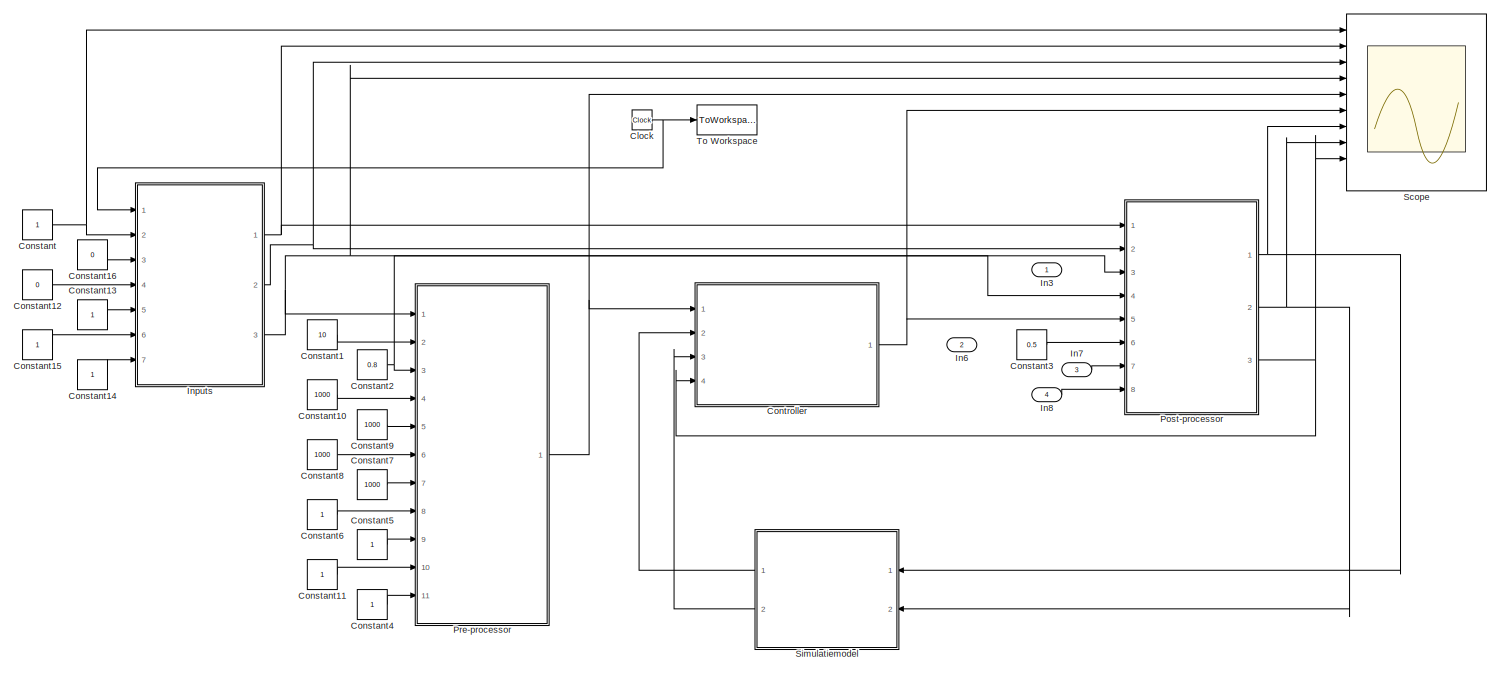
[diagram: root canvas - part 1/2, most of the canvas]
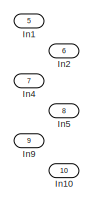
[diagram: root canvas - part 2/2, middle left region]
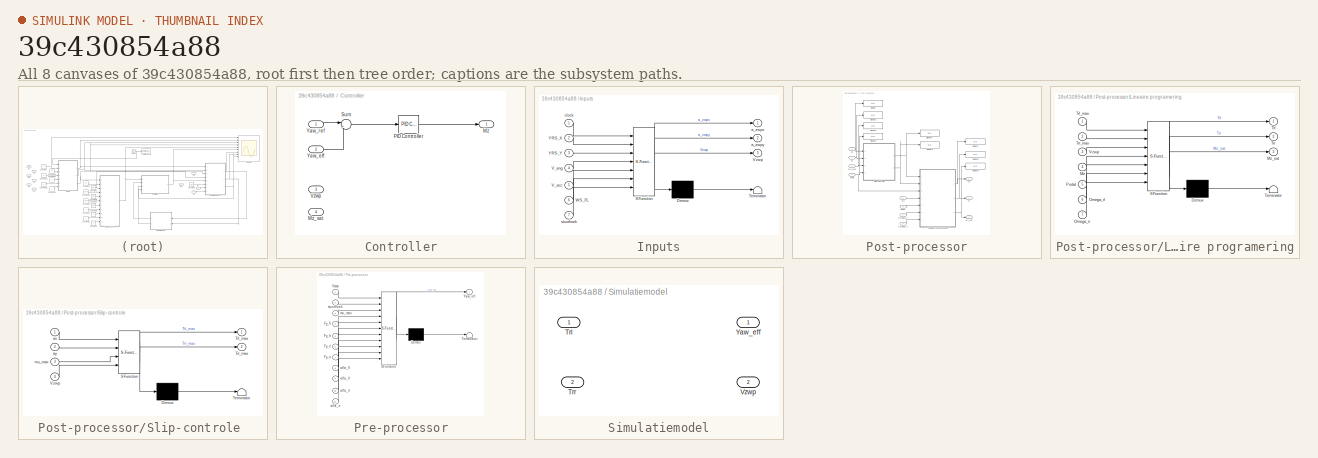
[diagram: thumbnail index - all 8 canvases of the model, root first then tree order]
MODEL slx_39c430854a88
KIND model
CONFIG AbsTol = auto
CONFIG FixedStep = 0.001
CONFIG MaxStep = auto
CONFIG MinStep = auto
CONFIG RelTol = 1e-3
CONFIG SampleTimeConstraint = Unconstrained
CONFIG Solver = ode4
CONFIG SolverMode = Auto
CONFIG SolverName = ode4
CONFIG StartTime = 0.0
CONFIG StopTime = 2
BLOCK [Clock] Clock
BLOCK [Constant] Constant
BLOCK [Constant] Constant1
  Value = 10
BLOCK [Constant] Constant10
  Value = 1000
BLOCK [Constant] Constant11
BLOCK [Constant] Constant12
  Value = 0
BLOCK [Constant] Constant13
BLOCK [Constant] Constant14
BLOCK [Constant] Constant15
BLOCK [Constant] Constant16
  Value = 0
BLOCK [Constant] Constant2
  Value = 0.8
BLOCK [Constant] Constant3
  Value = 0.5
BLOCK [Constant] Constant4
BLOCK [Constant] Constant5
BLOCK [Constant] Constant6
BLOCK [Constant] Constant7
  Value = 1000
BLOCK [Constant] Constant8
  Value = 1000
BLOCK [Constant] Constant9
  Value = 1000
BLOCK [SubSystem] Controller
  Ports = [4, 1]
  RequestExecContextInheritance = off
  Variant = off
BLOCK [Outport] Controller/Mz
  IconDisplay = Port number
BLOCK [Inport] Controller/Mz_sat
  IconDisplay = Port number
  Port = 4
BLOCK [Reference] Controller/PID Controller  REF=simulink/Continuous/PID Controller
  Ports = [1, 1]
  SourceBlock = simulink/Continuous/PID Controller
  SourceType = PID 1dof
BLOCK [Sum] Controller/Sum
  IconShape = round
  InputSameDT = off
  Inputs = |+-
  OutDataTypeStr = Inherit: Inherit via internal rule
  Ports = [2, 1]
  SaturateOnIntegerOverflow = off
BLOCK [Inport] Controller/Vzwp
  IconDisplay = Port number
  Port = 3
BLOCK [Inport] Controller/Yaw_eff
  IconDisplay = Port number
  Port = 2
BLOCK [Inport] Controller/Yaw_ref
  IconDisplay = Port number
BLOCK [Inport] In1
  IconDisplay = Port number
  Port = 5
BLOCK [Inport] In10
  IconDisplay = Port number
  Port = 10
BLOCK [Inport] In2
  IconDisplay = Port number
  Port = 6
BLOCK [Inport] In3
  IconDisplay = Port number
BLOCK [Inport] In4
  IconDisplay = Port number
  Port = 7
BLOCK [Inport] In5
  IconDisplay = Port number
  Port = 8
BLOCK [Inport] In6
  IconDisplay = Port number
  Port = 2
BLOCK [Inport] In7
  IconDisplay = Port number
  Port = 3
BLOCK [Inport] In8
  IconDisplay = Port number
  Port = 4
BLOCK [Inport] In9
  IconDisplay = Port number
  Port = 9
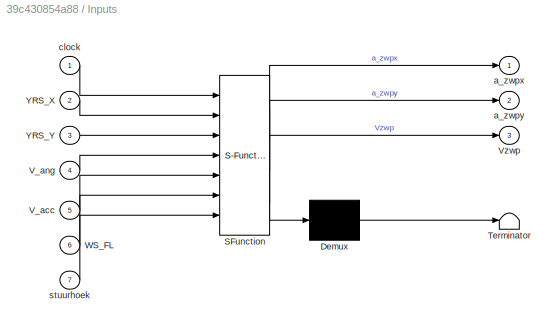
BLOCK [SubSystem] Inputs
  ErrorFcn = Stateflow.Translate.translate
  PermitHierarchicalResolution = ExplicitOnly
  Ports = [7, 3]
  RequestExecContextInheritance = off
  SFBlockType = MATLAB Function
  TreatAsAtomicUnit = on
  Variant = off
BLOCK [Demux] Inputs/ Demux 
  Outputs = 1
  Ports = [1, 1]
BLOCK [S-Function] Inputs/ SFunction 
  EnableBusSupport = on
  FunctionName = sf_sfun
  PortCounts = [7 4]
  Ports = [7, 4]
  SFunctionDeploymentMode = off
  Tag = Stateflow S-Function Controller_Michiel 4
BLOCK [Terminator] Inputs/ Terminator 
BLOCK [Inport] Inputs/V_acc
  IconDisplay = Port number
  Port = 5
BLOCK [Inport] Inputs/V_ang
  IconDisplay = Port number
  Port = 4
BLOCK [Outport] Inputs/Vzwp
  IconDisplay = Port number
  Port = 3
BLOCK [Inport] Inputs/WS_FL
  IconDisplay = Port number
  Port = 6
BLOCK [Inport] Inputs/YRS_X
  IconDisplay = Port number
  Port = 2
BLOCK [Inport] Inputs/YRS_Y
  IconDisplay = Port number
  Port = 3
BLOCK [Outport] Inputs/a_zwpx
  IconDisplay = Port number
BLOCK [Outport] Inputs/a_zwpy
  IconDisplay = Port number
  Port = 2
BLOCK [Inport] Inputs/clock
  IconDisplay = Port number
BLOCK [Inport] Inputs/stuurhoek
  IconDisplay = Port number
  Port = 7
BLOCK [SubSystem] Post-processor
  Ports = [8, 3]
  RequestExecContextInheritance = off
  Variant = off
BLOCK [Display] Post-processor/Display
  Decimation = 1
  Ports = [1]
BLOCK [Display] Post-processor/Display1
  Decimation = 1
  Ports = [1]
BLOCK [Display] Post-processor/Display2
  Decimation = 1
  Ports = [1]
BLOCK [Display] Post-processor/Display3
  Decimation = 1
  Ports = [1]
BLOCK [Display] Post-processor/Display4
  Decimation = 1
  Ports = [1]
BLOCK [Display] Post-processor/Display5
  Decimation = 1
  Ports = [1]
BLOCK [Display] Post-processor/Display6
  Decimation = 1
  Ports = [1]
BLOCK [Display] Post-processor/Display7
  Decimation = 1
  Ports = [1]
BLOCK [Display] Post-processor/Display8
  Decimation = 1
  Ports = [1]
BLOCK [SubSystem] Post-processor/Lineaire programering
  ErrorFcn = Stateflow.Translate.translate
  PermitHierarchicalResolution = ExplicitOnly
  Ports = [7, 3]
  RequestExecContextInheritance = off
  SFBlockType = MATLAB Function
  TreatAsAtomicUnit = on
  Variant = off
BLOCK [Demux] Post-processor/Lineaire programering/ Demux 
  Outputs = 1
  Ports = [1, 1]
BLOCK [S-Function] Post-processor/Lineaire programering/ SFunction 
  EnableBusSupport = on
  FunctionName = sf_sfun
  PortCounts = [7 4]
  Ports = [7, 4]
  SFunctionDeploymentMode = off
  Tag = Stateflow S-Function Controller_Michiel 1
BLOCK [Terminator] Post-processor/Lineaire programering/ Terminator 
BLOCK [Inport] Post-processor/Lineaire programering/Mz
  IconDisplay = Port number
  Port = 4
BLOCK [Outport] Post-processor/Lineaire programering/Mz_sat
  IconDisplay = Port number
  Port = 3
BLOCK [Inport] Post-processor/Lineaire programering/Omega_rl
  IconDisplay = Port number
  Port = 6
BLOCK [Inport] Post-processor/Lineaire programering/Omega_rr
  IconDisplay = Port number
  Port = 7
BLOCK [Inport] Post-processor/Lineaire programering/Pedal
  IconDisplay = Port number
  Port = 5
BLOCK [Outport] Post-processor/Lineaire programering/Trl
  IconDisplay = Port number
BLOCK [Inport] Post-processor/Lineaire programering/Trl_max
  IconDisplay = Port number
BLOCK [Outport] Post-processor/Lineaire programering/Trr
  IconDisplay = Port number
  Port = 2
BLOCK [Inport] Post-processor/Lineaire programering/Trr_max
  IconDisplay = Port number
  Port = 2
BLOCK [Inport] Post-processor/Lineaire programering/Vzwp
  IconDisplay = Port number
  Port = 3
BLOCK [Inport] Post-processor/Mz
  IconDisplay = Port number
  Port = 5
BLOCK [Outport] Post-processor/Mz_sat
  IconDisplay = Port number
  Port = 3
BLOCK [Inport] Post-processor/Omega_rl
  IconDisplay = Port number
  Port = 7
BLOCK [Inport] Post-processor/Omega_rr
  IconDisplay = Port number
  Port = 8
BLOCK [Inport] Post-processor/Pedal
  IconDisplay = Port number
  Port = 6
BLOCK [SubSystem] Post-processor/Slip-controle 
  ErrorFcn = Stateflow.Translate.translate
  PermitHierarchicalResolution = ExplicitOnly
  Ports = [4, 2]
  RequestExecContextInheritance = off
  SFBlockType = MATLAB Function
  TreatAsAtomicUnit = on
  Variant = off
BLOCK [Demux] Post-processor/Slip-controle / Demux 
  Outputs = 1
  Ports = [1, 1]
BLOCK [S-Function] Post-processor/Slip-controle / SFunction 
  EnableBusSupport = on
  FunctionName = sf_sfun
  PortCounts = [4 3]
  Ports = [4, 3]
  SFunctionDeploymentMode = off
  Tag = Stateflow S-Function Controller_Michiel 2
BLOCK [Terminator] Post-processor/Slip-controle / Terminator 
BLOCK [Outport] Post-processor/Slip-controle /Trl_max
  IconDisplay = Port number
BLOCK [Outport] Post-processor/Slip-controle /Trr_max
  IconDisplay = Port number
  Port = 2
BLOCK [Inport] Post-processor/Slip-controle /Vzwp
  IconDisplay = Port number
  Port = 4
BLOCK [Inport] Post-processor/Slip-controle /ax
  IconDisplay = Port number
BLOCK [Inport] Post-processor/Slip-controle /ay
  IconDisplay = Port number
  Port = 2
BLOCK [Inport] Post-processor/Slip-controle /mu_max
  IconDisplay = Port number
  Port = 3
BLOCK [Outport] Post-processor/Trl
  IconDisplay = Port number
BLOCK [Outport] Post-processor/Trr
  IconDisplay = Port number
  Port = 2
BLOCK [Inport] Post-processor/Vzwp
  IconDisplay = Port number
  Port = 4
BLOCK [Inport] Post-processor/ax
  IconDisplay = Port number
BLOCK [Inport] Post-processor/ay
  IconDisplay = Port number
  Port = 2
BLOCK [Inport] Post-processor/mu_max
  IconDisplay = Port number
  Port = 3
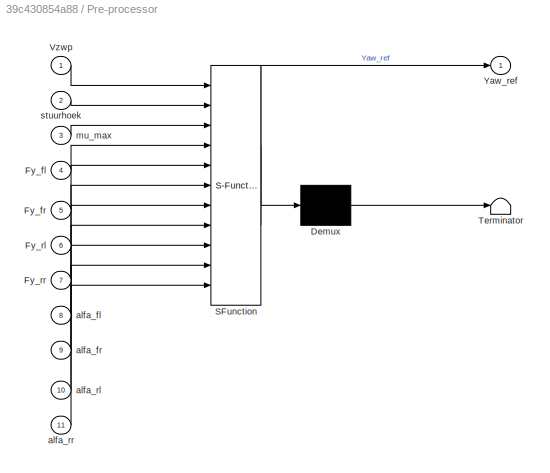
BLOCK [SubSystem] Pre-processor
  ErrorFcn = Stateflow.Translate.translate
  PermitHierarchicalResolution = ExplicitOnly
  Ports = [11, 1]
  RequestExecContextInheritance = off
  SFBlockType = MATLAB Function
  TreatAsAtomicUnit = on
  Variant = off
BLOCK [Demux] Pre-processor/ Demux 
  Outputs = 1
  Ports = [1, 1]
BLOCK [S-Function] Pre-processor/ SFunction 
  EnableBusSupport = on
  FunctionName = sf_sfun
  PortCounts = [11 2]
  Ports = [11, 2]
  SFunctionDeploymentMode = off
  Tag = Stateflow S-Function Controller_Michiel 3
BLOCK [Terminator] Pre-processor/ Terminator 
BLOCK [Inport] Pre-processor/Fy_fl
  IconDisplay = Port number
  Port = 4
BLOCK [Inport] Pre-processor/Fy_fr
  IconDisplay = Port number
  Port = 5
BLOCK [Inport] Pre-processor/Fy_rl
  IconDisplay = Port number
  Port = 6
BLOCK [Inport] Pre-processor/Fy_rr
  IconDisplay = Port number
  Port = 7
BLOCK [Inport] Pre-processor/Vzwp
  IconDisplay = Port number
BLOCK [Outport] Pre-processor/Yaw_ref
  IconDisplay = Port number
BLOCK [Inport] Pre-processor/alfa_fl
  IconDisplay = Port number
  Port = 8
BLOCK [Inport] Pre-processor/alfa_fr
  IconDisplay = Port number
  Port = 9
BLOCK [Inport] Pre-processor/alfa_rl
  IconDisplay = Port number
  Port = 10
BLOCK [Inport] Pre-processor/alfa_rr
  IconDisplay = Port number
  Port = 11
BLOCK [Inport] Pre-processor/mu_max
  IconDisplay = Port number
  Port = 3
BLOCK [Inport] Pre-processor/stuurhoek
  IconDisplay = Port number
  Port = 2
BLOCK [Scope] Scope
  NumInputPorts = 10
  Ports = [10]
  ScopeSpecificationString = Simulink.scopes.TimeScopeBlockCfg('CurrentConfiguration', extmgr.ConfigurationSet(extmgr.Configuration('Core','General UI',true),extmgr.Configuration('Core','Source UI',true),extmgr.Configuration('Sources','WiredSimulink',true),extmgr.Configuration('Visuals','Time Domain',true,'SerializedDisplays',{struct('MinYLimReal','-7.6857','MaxYLimReal','69.17134','YLabelReal','','MinYLimMag','0.00000','MaxY...<+2123ch>
BLOCK [SubSystem] Simulatiemodel
  Ports = [2, 2]
  RequestExecContextInheritance = off
  Variant = off
BLOCK [Inport] Simulatiemodel/Trl
  IconDisplay = Port number
BLOCK [Inport] Simulatiemodel/Trr
  IconDisplay = Port number
  Port = 2
BLOCK [Outport] Simulatiemodel/Vzwp
  IconDisplay = Port number
  Port = 2
BLOCK [Outport] Simulatiemodel/Yaw_eff
  IconDisplay = Port number
BLOCK [ToWorkspace] To Workspace
  FixptAsFi = on
  MaxDataPoints = inf
  Ports = [1]
  SampleTime = -1
  Save2DSignal = 3-D array (concatenate along third dimension)
  SaveFormat = Timeseries
  VariableName = t
NET Clock:1 -> Inputs:1, To Workspace:1
LINE Constant10:1 -> Pre-processor:4
LINE Constant11:1 -> Pre-processor:10
LINE Constant12:1 -> Inputs:4
LINE Constant13:1 -> Inputs:5
LINE Constant14:1 -> Inputs:7
LINE Constant15:1 -> Inputs:6
LINE Constant16:1 -> Inputs:3
LINE Constant1:1 -> Pre-processor:2
NET Constant2:1 -> Post-processor:3, Pre-processor:3
LINE Constant3:1 -> Post-processor:6
LINE Constant4:1 -> Pre-processor:11
LINE Constant5:1 -> Pre-processor:9
LINE Constant6:1 -> Pre-processor:8
LINE Constant7:1 -> Pre-processor:7
LINE Constant8:1 -> Pre-processor:6
LINE Constant9:1 -> Pre-processor:5
NET Constant:1 -> Inputs:2, Scope:1
LINE Controller/PID Controller:1 -> Controller/Mz:1
LINE Controller/Sum:1 -> Controller/PID Controller:1
LINE Controller/Yaw_eff:1 -> Controller/Sum:2
LINE Controller/Yaw_ref:1 -> Controller/Sum:1
NET Controller:1 -> Post-processor:5, Scope:6
LINE In7:1 -> Post-processor:7
LINE In8:1 -> Post-processor:8
NET Inputs:1 -> Post-processor:1, Scope:2
NET Inputs:2 -> Post-processor:2, Scope:3
NET Inputs:3 -> Post-processor:4, Pre-processor:1, Scope:4
NET Post-processor/Lineaire programering:1 -> Post-processor/Display7:1, Post-processor/Trl:1
NET Post-processor/Lineaire programering:2 -> Post-processor/Display6:1, Post-processor/Trr:1
NET Post-processor/Lineaire programering:3 -> Post-processor/Display8:1, Post-processor/Mz_sat:1
LINE Post-processor/Mz:1 -> Post-processor/Lineaire programering:4
LINE Post-processor/Omega_rl:1 -> Post-processor/Lineaire programering:6
LINE Post-processor/Omega_rr:1 -> Post-processor/Lineaire programering:7
LINE Post-processor/Pedal:1 -> Post-processor/Lineaire programering:5
NET Post-processor/Slip-controle :1 -> Post-processor/Display4:1, Post-processor/Lineaire programering:1
NET Post-processor/Slip-controle :2 -> Post-processor/Display5:1, Post-processor/Lineaire programering:2
NET Post-processor/Vzwp:1 -> Post-processor/Display3:1, Post-processor/Lineaire programering:3, Post-processor/Slip-controle :4
NET Post-processor/ax:1 -> Post-processor/Display:1, Post-processor/Slip-controle :1
NET Post-processor/ay:1 -> Post-processor/Display1:1, Post-processor/Slip-controle :2
NET Post-processor/mu_max:1 -> Post-processor/Display2:1, Post-processor/Slip-controle :3
NET Post-processor:1 -> Scope:7, Simulatiemodel:1
NET Post-processor:2 -> Scope:8, Simulatiemodel:2
NET Post-processor:3 -> Controller:4, Scope:9
NET Pre-processor:1 -> Controller:1, Scope:5
LINE Simulatiemodel:1 -> Controller:2
LINE Simulatiemodel:2 -> Controller:3
note: NET lines group one-source signal fan-out (src -> all destinations, sorted); 1:1 wires keep LINE
CHART Post-processor/Lineaire programering states=1 transitions=1
  STATE_LABEL 'eML_blk_kernel()'
  STATE_LABEL 'SCRIPT:\nfunction [Trl,Trr,Mz_sat] = Lineaire_programmering(Trl_max,Trr_max,Vzwp,Mz,Pedal,Omega_rl,Omega_rr)\n%Deze blok staat in voor het berekenen van de te leveren torque per wiel\n%aan de hand van twee lineaire doelen. Het eerste doel is het netto moment\n%rond het zwaartepunt optimaliseren. Het tweede doel is de torque die wordt\n%overgedragen op het wegdek optimaliseren.\n\n\n%%\nM       =265;       ...<+3127ch>'
CHART Post-processor/Slip-controle
 states=1 transitions=1
  STATE_LABEL 'eML_blk_kernel()'
  STATE_LABEL "SCRIPT:\nfunction [Trl_max,Trr_max] = Slip_controle(ax,ay,mu_max,Vzwp)\n% Berekening van de maximale torques die men kan toepassen op de wielen\n% door berekening van de normaalkrachten op de wielen.\n\n%load('parameters.mat');\n\nM       =265;               \nL       =1.525;             \nLf      =0.780;             \nLr      =0.745;             \nTf      =1.200;             \nTr      =1.200;             \ng ...<+2764ch>"
CHART Pre-processor states=1 transitions=1
  STATE_LABEL 'eML_blk_kernel()'
  STATE_LABEL 'SCRIPT:\nfunction Yaw_ref  = pre_processor(Vzwp,stuurhoek,mu_max,Fy_fl,Fy_fr,Fy_rl,Fy_rr,alfa_fl,alfa_fr,alfa_rl,alfa_rr)\n%De pre-processor berekend de gewenste yaw rate door het minimum te nemen\n%van de ideale en de maximale yaw rate waarde.\n\n\nM       =265;               \nL       =1.525;             \nLf      =0.780;             \nLr      =0.745;             \nTf      =1.200;             \nTr      =1....<+1546ch>'
CHART Inputs states=1 transitions=1
  STATE_LABEL 'eML_blk_kernel()'
  STATE_LABEL 'SCRIPT:\nfunction [a_zwpx,a_zwpy,Vzwp]= Inputs(clock,YRS_X,YRS_Y,V_ang,V_acc,WS_FL,stuurhoek)\n% hier zullen de inputs verwerkt worden die nodig zijn voor de \n    % aansturing van het controle algortihme.\n    %\n    % YRS is de versnelling die gemeten word door de yaw-rate sensor\n    % V_ang is de hoeksnelheid       \n    % V_acc is de hoekversnelling\n    \nR1 = 0;\nR2 = 0.100;\n%YRS_X = 2;\n%YRS_Y = 2;\n%...<+1125ch>'
